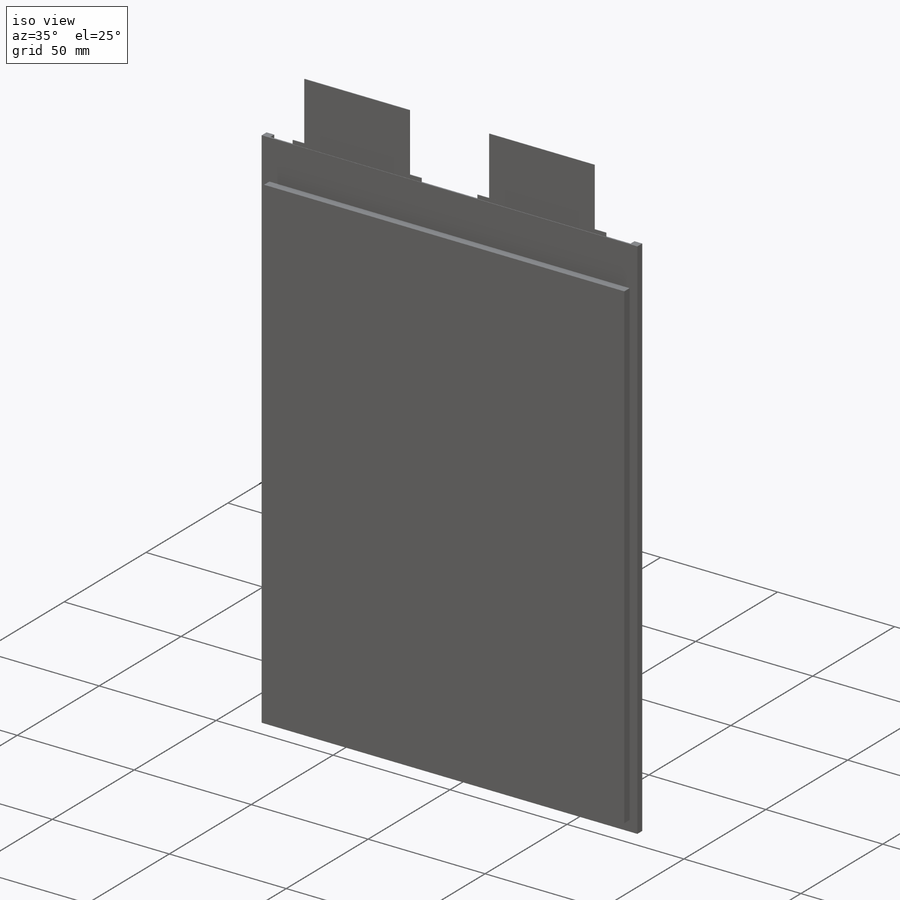
[diagram: iso view]
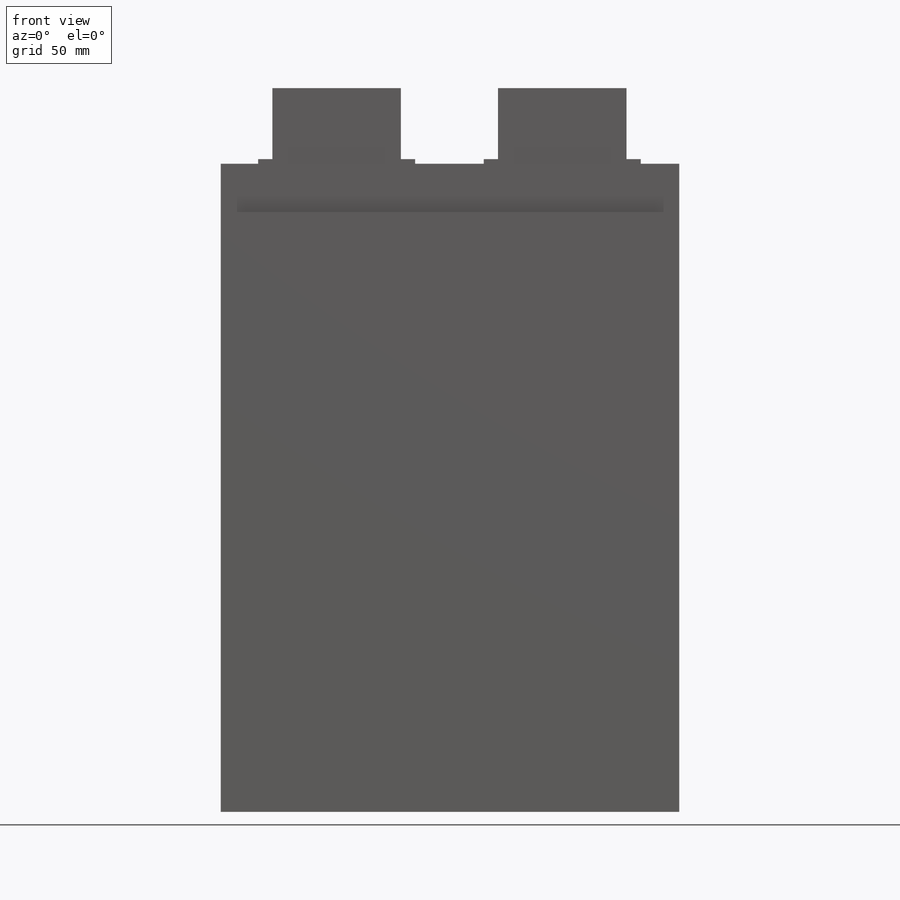
[diagram: front view]
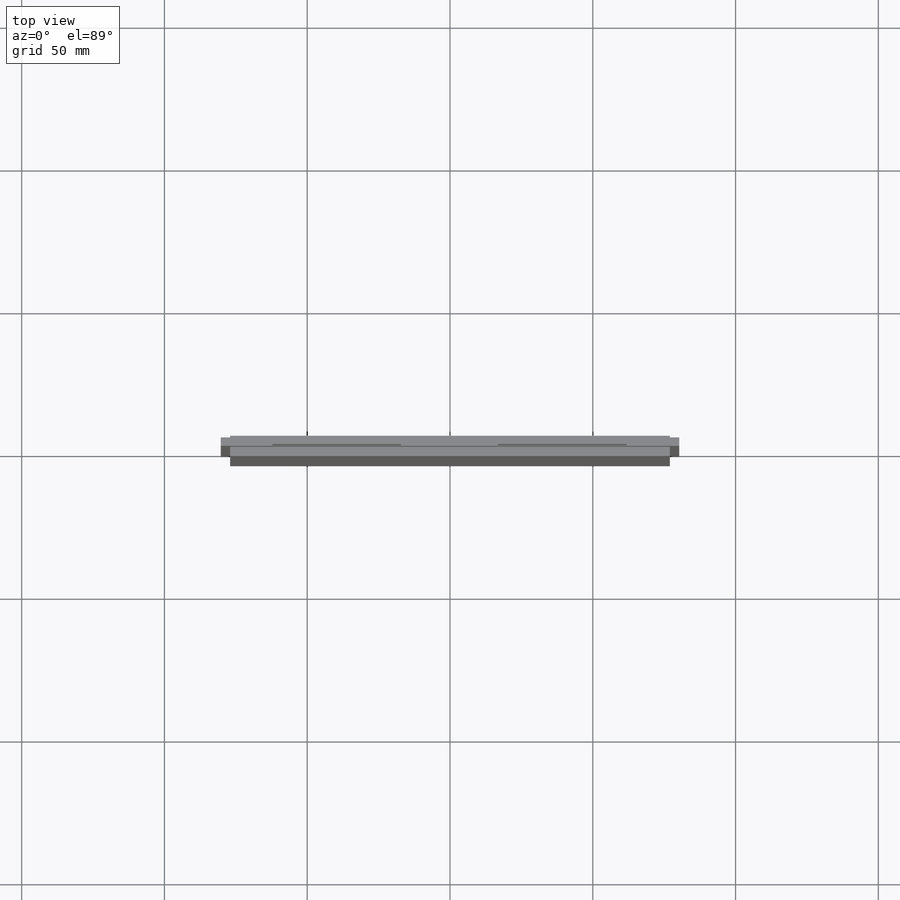
[diagram: top view]
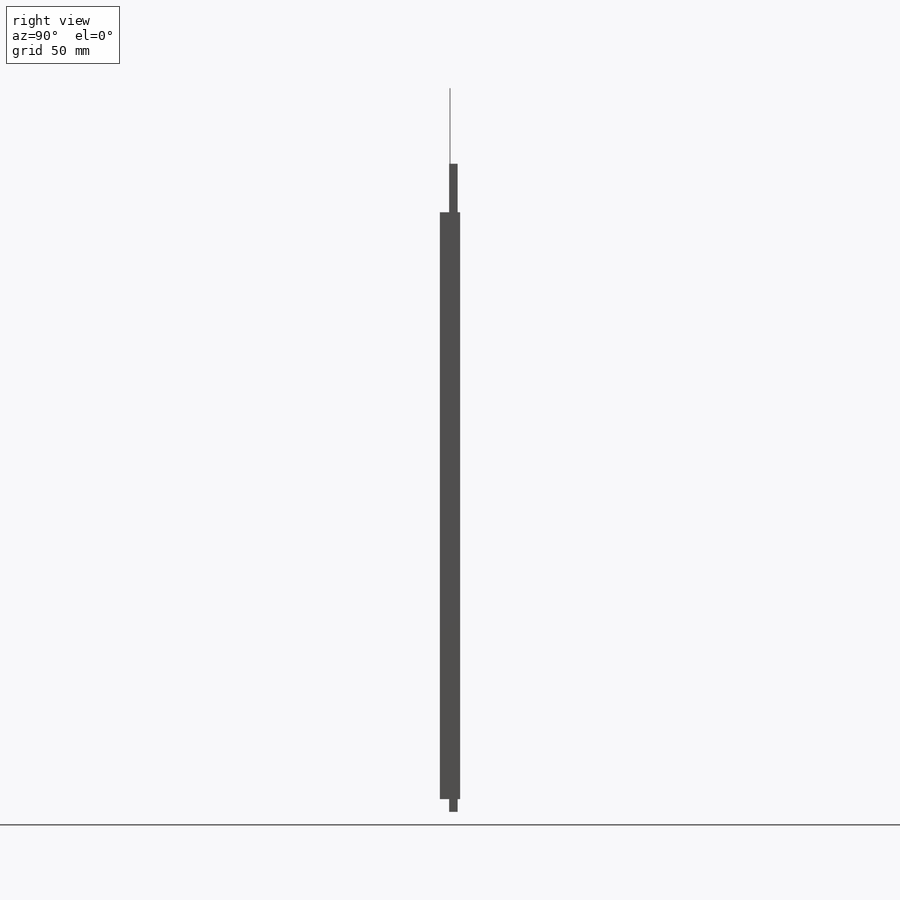
[diagram: right view]
SOLIDWORKS PART (.sldprt)
format: sldprt  version: not decoded by parser v0  size: 286,720 bytes
history: native  units: mm
features: sketch x11, extrude x5, plane x2, material x1 (+14 scaffold rows collapsed; 1 parser-record rows omitted)
feature tree (34):
  scaffold x14  (default folders/planes/origin — collapsed)
  material  "Material <not specified>"
  sketch  "Sketch1"  dims[D1=160.6mm D2=227.0mm]
  extrude  "Insulation"  Depth=0.3mm
  sketch  "Sketch2"  dims[D1=154.0mm D2=4.5mm D3=17.0mm D4=3.3mm D5=3.3mm]
  extrude  "Main Body"  Depth=3.55mm
  sketch  "Sketch5"
  extrude  "Side Folds"  Depth=2.366667mm
  parser-record x1  (decoder bookkeeping rows leaked as tree rows — omitted from the tree; the rows remain in map.json)
  sketch  "Sketch6"  dims[c1.D1=13.5mm c1.D2=1.6mm c1.D3=1.6mm c1.D4=1.6mm c1.D5=1.6mm c1.D6=~32.680092mm c1.D7=24.0mm c1.D8=55.0mm c1.D9=13.1mm c2.D2=1.6mm]
  extrude  "Negative Tab Base"  Depth=0.1mm
  sketch  "Sketch7"  dims[D1=24.0mm D2=~48.814089mm D3=13.1mm]
  extrude  "Positive Tab Base"  Depth=0.15mm
  sketch  "Tab Weldment Planes"
  sketch  "Negative Tab Sketch"  dims[c1.D1=0.2mm c1.D2=0.1mm c1.D3=3.484mm c1.D4=12.7mm c1.D5=0.1mm c1.D6=0.1mm c1.D7=2.94mm c1.D8=1.0mm c1.D9=6.02mm c2.D8=2.94mm c2.D10=0.1mm c2.D5=0.1mm c2.D2=0.1mm c2.D11=0.4mm c2.D12=2.54mm c2.D13=0.4mm c2.D1=24.9mm]
  sketch  "Positive Tab Sketch"  dims[D1=24.9mm D2=19.8mm]
  plane  "Plane6"
  sketch  "Sketch113"  dims[D1=45.0mm D2=0.2mm]
  sketch  "Positive Tab"
  plane  "Plane5"
  sketch  "Sketch110"  dims[D1=45.0mm D2=0.3mm]
decode coverage: 13 of 16 modeling features carry decoded parameters
note: ~ marks probable driven/reference dimensions
note: suppression state not decoded; provenance and decode notes live in map.json
